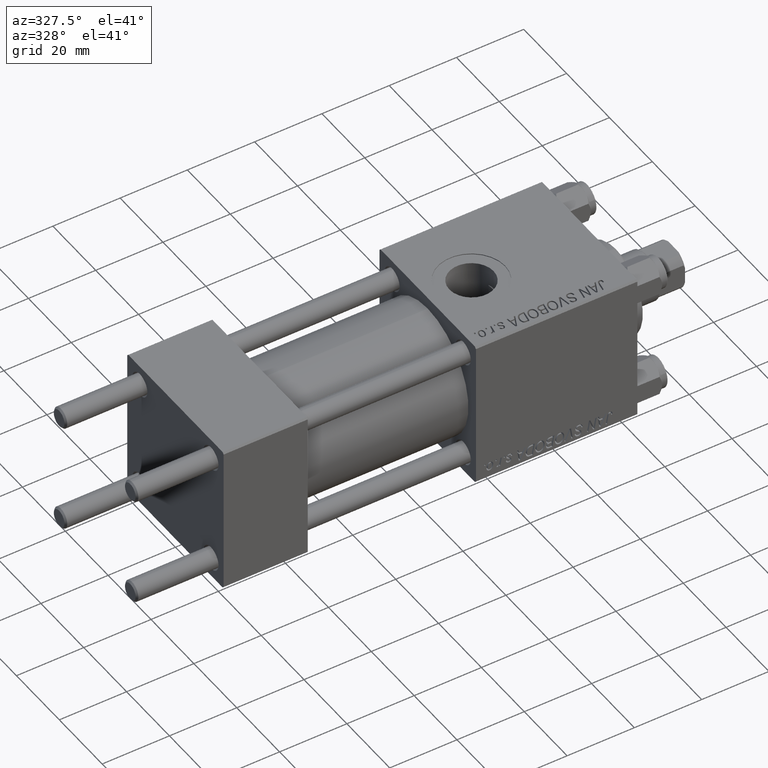
[diagram: clean part render]
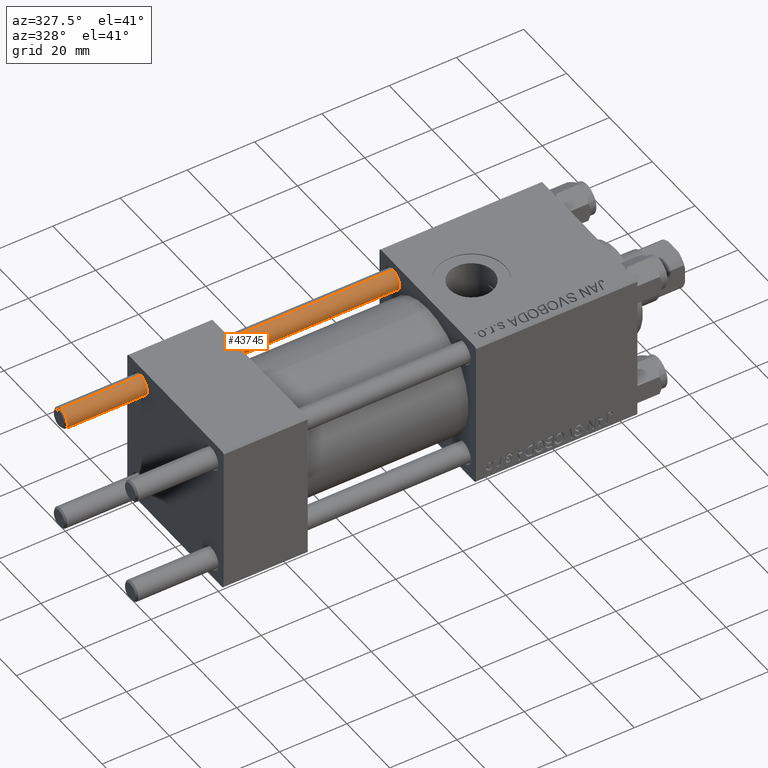
[diagram: same view with one face highlighted and labeled with its STEP entity id]
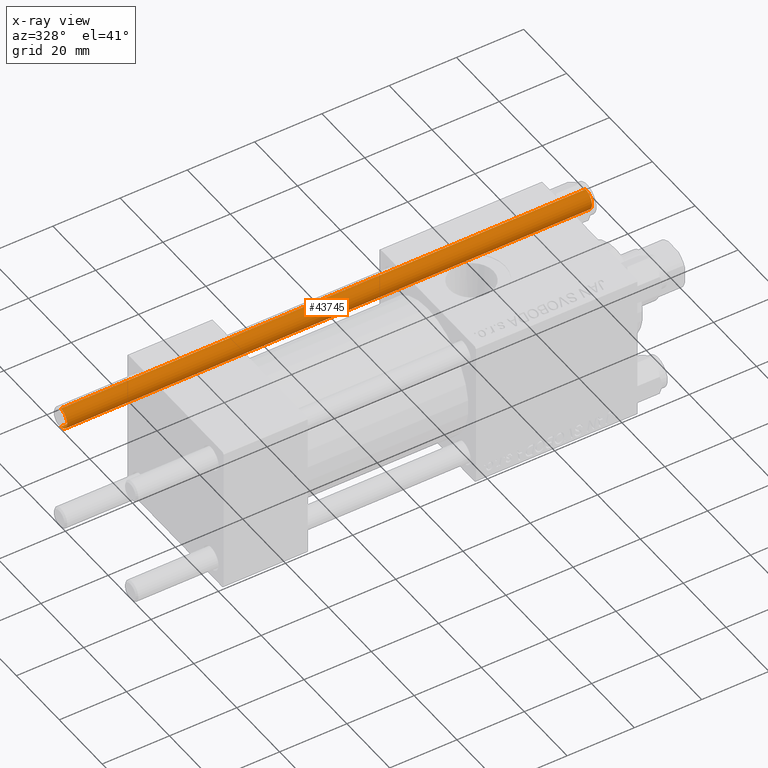
[diagram: x-ray of the same camera — body ghosted, the highlighted face saturated]
A machine part, auxiliary view. The second image highlights one B-rep face of the part: STEP entity #43745.
The next image is the same camera in x-ray: the body ghosted, the highlighted face saturated — about 0% of this face is hidden behind the body in this view.
In plain terms, the highlighted cylindrical surface (edge-blend (fillet) strip) has radius 3 mm, axis along (-1, -0, -0).
Its self-contained STEP definition (entity closure, byte-faithful):
#549 = FACE_OUTER_BOUND ( 'NONE', #45343, .T. ) ;
#1451 = CARTESIAN_POINT ( 'NONE',  ( 3.000000000000000444, 3.673940397442060361E-16, 157.0000000000000000 ) ) ;
#1506 = VECTOR ( 'NONE', #15834, 1000.000000000000000 ) ;
#3750 = EDGE_CURVE ( 'NONE', #3773, #46481, #40091, .T. ) ;
#3773 = VERTEX_POINT ( 'NONE', #18153 ) ;
#6974 = EDGE_CURVE ( 'NONE', #38689, #42343, #27151, .T. ) ;
#7899 = EDGE_CURVE ( 'NONE', #38689, #3773, #36921, .T. ) ;
#9327 = DIRECTION ( 'NONE',  ( 1.000000000000000000, 0.000000000000000000, 0.000000000000000000 ) ) ;
#11182 = DIRECTION ( 'NONE',  ( 1.000000000000000000, 0.000000000000000000, 0.000000000000000000 ) ) ;
#14108 = DIRECTION ( 'NONE',  ( -0.000000000000000000, -0.000000000000000000, -1.000000000000000000 ) ) ;
#14645 = AXIS2_PLACEMENT_3D ( 'NONE', #27247, #30285, #27493 ) ;
#14952 = EDGE_CURVE ( 'NONE', #46481, #42343, #42791, .T. ) ;
#15209 = AXIS2_PLACEMENT_3D ( 'NONE', #16901, #47632, #9327 ) ;
#15834 = DIRECTION ( 'NONE',  ( -0.000000000000000000, -0.000000000000000000, -1.000000000000000000 ) ) ;
#16273 = CARTESIAN_POINT ( 'NONE',  ( 3.000000000000000444, 3.673940397442060361E-16, 156.5000000000000284 ) ) ;
#16901 = CARTESIAN_POINT ( 'NONE',  ( 0.000000000000000000, 0.000000000000000000, 156.5000000000000284 ) ) ;
#17831 = AXIS2_PLACEMENT_3D ( 'NONE', #26044, #44689, #11182 ) ;
#18153 = CARTESIAN_POINT ( 'NONE',  ( -3.000000000000000444, 0.000000000000000000, 156.5000000000000284 ) ) ;
#18535 = ORIENTED_EDGE ( 'NONE', *, *, #14952, .T. ) ;
#22392 = ORIENTED_EDGE ( 'NONE', *, *, #3750, .T. ) ;
#24389 = CARTESIAN_POINT ( 'NONE',  ( 3.000000000000000444, 3.673940397442060361E-16, 0.4999999999999726885 ) ) ;
#26044 = CARTESIAN_POINT ( 'NONE',  ( 0.000000000000000000, 0.000000000000000000, 0.4999999999999726885 ) ) ;
#27151 = LINE ( 'NONE', #1451, #1506 ) ;
#27247 = CARTESIAN_POINT ( 'NONE',  ( 0.000000000000000000, 0.000000000000000000, 157.0000000000000000 ) ) ;
#27493 = DIRECTION ( 'NONE',  ( -1.000000000000000000, 0.000000000000000000, 0.000000000000000000 ) ) ;
#30285 = DIRECTION ( 'NONE',  ( -0.000000000000000000, -0.000000000000000000, -1.000000000000000000 ) ) ;
#32001 = ORIENTED_EDGE ( 'NONE', *, *, #6974, .F. ) ;
#32744 = CARTESIAN_POINT ( 'NONE',  ( -3.000000000000000444, 0.000000000000000000, 157.0000000000000000 ) ) ;
#32938 = ORIENTED_EDGE ( 'NONE', *, *, #7899, .T. ) ;
#33211 = CARTESIAN_POINT ( 'NONE',  ( -3.000000000000000444, 0.000000000000000000, 0.4999999999999726885 ) ) ;
#34316 = CYLINDRICAL_SURFACE ( 'NONE', #14645, 3.000000000000000444 ) ;
#36921 = CIRCLE ( 'NONE', #15209, 3.000000000000000444 ) ;
#38689 = VERTEX_POINT ( 'NONE', #16273 ) ;
#40091 = LINE ( 'NONE', #32744, #40934 ) ;
#40934 = VECTOR ( 'NONE', #14108, 1000.000000000000000 ) ;
#42343 = VERTEX_POINT ( 'NONE', #24389 ) ;
#42791 = CIRCLE ( 'NONE', #17831, 3.000000000000000444 ) ;
#43745 = ADVANCED_FACE ( 'NONE', ( #549 ), #34316, .T. ) ;
#44689 = DIRECTION ( 'NONE',  ( -0.000000000000000000, -0.000000000000000000, 1.000000000000000000 ) ) ;
#45343 = EDGE_LOOP ( 'NONE', ( #32001, #32938, #22392, #18535 ) ) ;
#46481 = VERTEX_POINT ( 'NONE', #33211 ) ;
#47632 = DIRECTION ( 'NONE',  ( 0.000000000000000000, 0.000000000000000000, -1.000000000000000000 ) ) ;